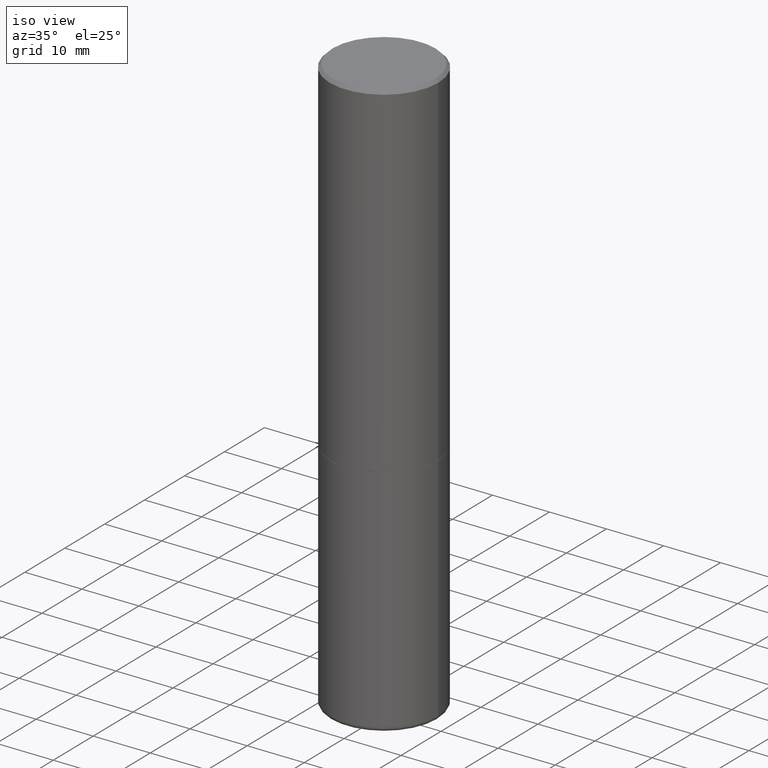
[diagram: clean part render]
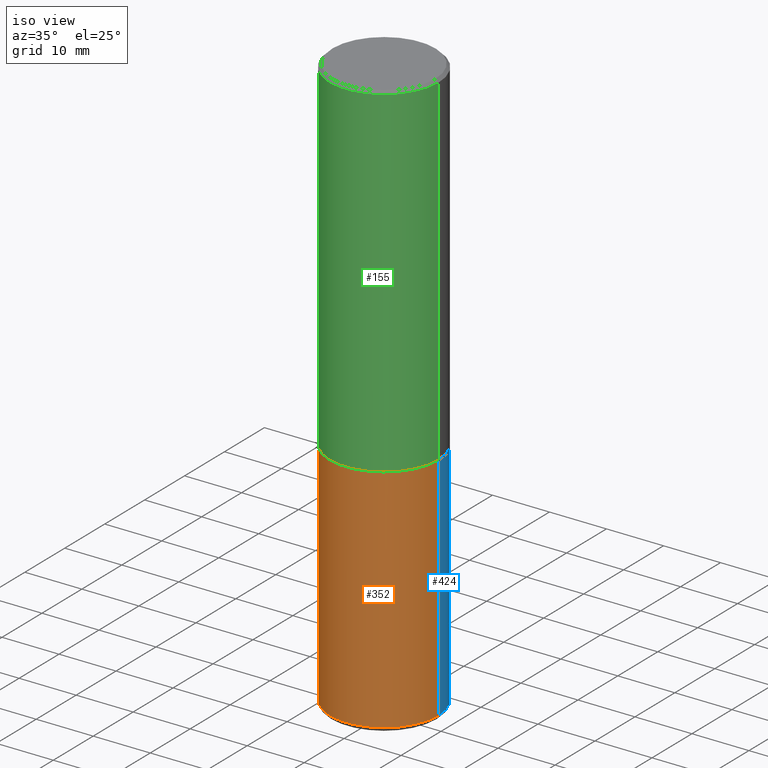
[diagram: same view with three faces highlighted in distinct colors, each labeled with its STEP entity id]
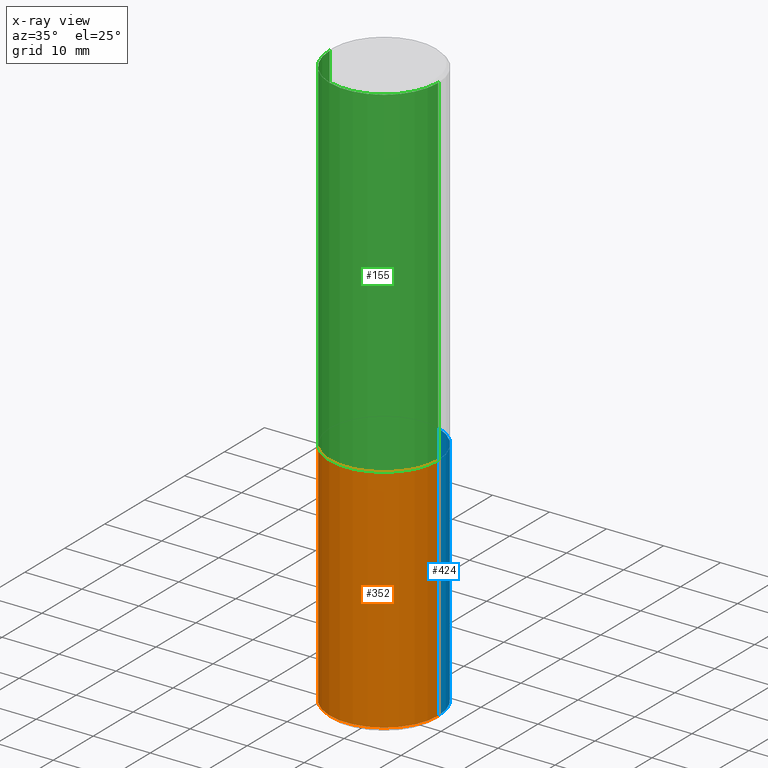
[diagram: x-ray of the same camera — body ghosted, the three highlighted faces saturated]
A machine part, iso view with three faces highlighted in distinct colors.
The next image is the same camera in x-ray (body ghosted, the three faces saturated) — at least one of them is partly hidden behind the body in this view.
Their STEP definitions:

[orange] entity #352 — the highlighted cylindrical surface (partial cylindrical patch) has radius 9.525 mm, axis along (-0, 0, 1).
#10 = DIRECTION ( 'NONE',  ( -2.445468806185136597E-29, 3.491481338843145583E-15, 1.000000000000000000 ) ) ;
#21 = EDGE_CURVE ( 'NONE', #475, #142, #248, .T. ) ;
#48 = EDGE_CURVE ( 'NONE', #256, #142, #184, .T. ) ;
#68 = DIRECTION ( 'NONE',  ( -2.445468806185136877E-29, 3.491481338843145188E-15, 1.000000000000000000 ) ) ;
#91 = CARTESIAN_POINT ( 'NONE',  ( 9.708513954033757613E-29, -1.386118490355461518E-14, -3.970001142308074993 ) ) ;
#122 = VERTEX_POINT ( 'NONE', #171 ) ;
#131 = CYLINDRICAL_SURFACE ( 'NONE', #177, 0.3749999999999995004 ) ;
#140 = DIRECTION ( 'NONE',  ( -2.445468806185136877E-29, 3.491481338843145188E-15, 1.000000000000000000 ) ) ;
#142 = VERTEX_POINT ( 'NONE', #322 ) ;
#156 = EDGE_LOOP ( 'NONE', ( #197, #285, #431, #291 ) ) ;
#159 = DIRECTION ( 'NONE',  ( 1.000000000000000000, -6.982962677686265133E-15, 0.000000000000000000 ) ) ;
#170 = FACE_OUTER_BOUND ( 'NONE', #156, .T. ) ;
#171 = CARTESIAN_POINT ( 'NONE',  ( -0.3749999999999993894, -8.412191282553170896E-15, -3.970001142308074993 ) ) ;
#176 = EDGE_CURVE ( 'NONE', #122, #256, #487, .T. ) ;
#177 = AXIS2_PLACEMENT_3D ( 'NONE', #344, #426, #233 ) ;
#184 = CIRCLE ( 'NONE', #190, 0.3749999999999995559 ) ;
#190 = AXIS2_PLACEMENT_3D ( 'NONE', #393, #10, #159 ) ;
#197 = ORIENTED_EDGE ( 'NONE', *, *, #176, .F. ) ;
#226 = CARTESIAN_POINT ( 'NONE',  ( -0.3749999999999995004, 2.664535259100372147E-15, -1.844600658845587076E-29 ) ) ;
#233 = DIRECTION ( 'NONE',  ( 1.000000000000000000, -6.982962677686265133E-15, 4.876176775795935793E-29 ) ) ;
#248 = LINE ( 'NONE', #476, #489 ) ;
#256 = VERTEX_POINT ( 'NONE', #292 ) ;
#285 = ORIENTED_EDGE ( 'NONE', *, *, #294, .T. ) ;
#291 = ORIENTED_EDGE ( 'NONE', *, *, #48, .F. ) ;
#292 = CARTESIAN_POINT ( 'NONE',  ( -0.3749999999999995559, -8.412191282553170896E-15, -2.375000000000000000 ) ) ;
#294 = EDGE_CURVE ( 'NONE', #122, #475, #348, .T. ) ;
#322 = CARTESIAN_POINT ( 'NONE',  ( 0.3749999999999995559, -1.091087918388481698E-14, -2.375000000000000000 ) ) ;
#324 = AXIS2_PLACEMENT_3D ( 'NONE', #91, #368, #440 ) ;
#344 = CARTESIAN_POINT ( 'NONE',  ( 0.000000000000000000, 0.000000000000000000, 0.000000000000000000 ) ) ;
#348 = CIRCLE ( 'NONE', #324, 0.3749999999999993894 ) ;
#352 = ADVANCED_FACE ( 'NONE', ( #170 ), #131, .T. ) ;
#359 = CARTESIAN_POINT ( 'NONE',  ( 0.3749999999999993894, -1.647979590768696204E-14, -3.970001142308074993 ) ) ;
#368 = DIRECTION ( 'NONE',  ( -2.445468806185136597E-29, 3.491481338843145583E-15, 1.000000000000000000 ) ) ;
#393 = CARTESIAN_POINT ( 'NONE',  ( 5.807988414689699417E-29, -8.292268179752470118E-15, -2.375000000000000000 ) ) ;
#426 = DIRECTION ( 'NONE',  ( -2.445468806185136597E-29, 3.491481338843145583E-15, 1.000000000000000000 ) ) ;
#431 = ORIENTED_EDGE ( 'NONE', *, *, #21, .T. ) ;
#440 = DIRECTION ( 'NONE',  ( 1.000000000000000000, -6.982962677686268288E-15, 0.000000000000000000 ) ) ;
#475 = VERTEX_POINT ( 'NONE', #359 ) ;
#476 = CARTESIAN_POINT ( 'NONE',  ( 0.3749999999999995004, -2.618611004132346072E-15, 1.828566290923473400E-29 ) ) ;
#479 = VECTOR ( 'NONE', #68, 39.37007874015748143 ) ;
#487 = LINE ( 'NONE', #226, #479 ) ;
#489 = VECTOR ( 'NONE', #140, 39.37007874015748143 ) ;

[blue] entity #424 — the highlighted cylindrical surface (partial cylindrical patch) has radius 9.525 mm, axis along (-0, 0, 1).
#21 = EDGE_CURVE ( 'NONE', #475, #142, #248, .T. ) ;
#51 = CIRCLE ( 'NONE', #281, 0.3749999999999995559 ) ;
#68 = DIRECTION ( 'NONE',  ( -2.445468806185136877E-29, 3.491481338843145188E-15, 1.000000000000000000 ) ) ;
#73 = DIRECTION ( 'NONE',  ( -2.445468806185136597E-29, 3.491481338843145583E-15, 1.000000000000000000 ) ) ;
#85 = CARTESIAN_POINT ( 'NONE',  ( 0.000000000000000000, 0.000000000000000000, 0.000000000000000000 ) ) ;
#98 = ORIENTED_EDGE ( 'NONE', *, *, #21, .F. ) ;
#122 = VERTEX_POINT ( 'NONE', #171 ) ;
#126 = DIRECTION ( 'NONE',  ( 1.000000000000000000, -6.982962677686268288E-15, 0.000000000000000000 ) ) ;
#140 = DIRECTION ( 'NONE',  ( -2.445468806185136877E-29, 3.491481338843145188E-15, 1.000000000000000000 ) ) ;
#142 = VERTEX_POINT ( 'NONE', #322 ) ;
#149 = DIRECTION ( 'NONE',  ( 1.000000000000000000, -6.982962677686265133E-15, 4.876176775795935793E-29 ) ) ;
#152 = CIRCLE ( 'NONE', #185, 0.3749999999999993894 ) ;
#171 = CARTESIAN_POINT ( 'NONE',  ( -0.3749999999999993894, -8.412191282553170896E-15, -3.970001142308074993 ) ) ;
#176 = EDGE_CURVE ( 'NONE', #122, #256, #487, .T. ) ;
#178 = AXIS2_PLACEMENT_3D ( 'NONE', #85, #73, #149 ) ;
#185 = AXIS2_PLACEMENT_3D ( 'NONE', #329, #406, #126 ) ;
#226 = CARTESIAN_POINT ( 'NONE',  ( -0.3749999999999995004, 2.664535259100372147E-15, -1.844600658845587076E-29 ) ) ;
#231 = EDGE_CURVE ( 'NONE', #142, #256, #51, .T. ) ;
#232 = ORIENTED_EDGE ( 'NONE', *, *, #315, .T. ) ;
#248 = LINE ( 'NONE', #476, #489 ) ;
#253 = EDGE_LOOP ( 'NONE', ( #232, #333, #486, #98 ) ) ;
#256 = VERTEX_POINT ( 'NONE', #292 ) ;
#275 = CYLINDRICAL_SURFACE ( 'NONE', #178, 0.3749999999999995004 ) ;
#281 = AXIS2_PLACEMENT_3D ( 'NONE', #423, #483, #297 ) ;
#292 = CARTESIAN_POINT ( 'NONE',  ( -0.3749999999999995559, -8.412191282553170896E-15, -2.375000000000000000 ) ) ;
#297 = DIRECTION ( 'NONE',  ( 1.000000000000000000, -6.982962677686265133E-15, 0.000000000000000000 ) ) ;
#314 = FACE_OUTER_BOUND ( 'NONE', #253, .T. ) ;
#315 = EDGE_CURVE ( 'NONE', #475, #122, #152, .T. ) ;
#322 = CARTESIAN_POINT ( 'NONE',  ( 0.3749999999999995559, -1.091087918388481698E-14, -2.375000000000000000 ) ) ;
#329 = CARTESIAN_POINT ( 'NONE',  ( 9.708513954033757613E-29, -1.386118490355461518E-14, -3.970001142308074993 ) ) ;
#333 = ORIENTED_EDGE ( 'NONE', *, *, #176, .T. ) ;
#359 = CARTESIAN_POINT ( 'NONE',  ( 0.3749999999999993894, -1.647979590768696204E-14, -3.970001142308074993 ) ) ;
#406 = DIRECTION ( 'NONE',  ( -2.445468806185136597E-29, 3.491481338843145583E-15, 1.000000000000000000 ) ) ;
#423 = CARTESIAN_POINT ( 'NONE',  ( 5.807988414689699417E-29, -8.292268179752470118E-15, -2.375000000000000000 ) ) ;
#424 = ADVANCED_FACE ( 'NONE', ( #314 ), #275, .T. ) ;
#475 = VERTEX_POINT ( 'NONE', #359 ) ;
#476 = CARTESIAN_POINT ( 'NONE',  ( 0.3749999999999995004, -2.618611004132346072E-15, 1.828566290923473400E-29 ) ) ;
#479 = VECTOR ( 'NONE', #68, 39.37007874015748143 ) ;
#483 = DIRECTION ( 'NONE',  ( -2.445468806185136597E-29, 3.491481338843145583E-15, 1.000000000000000000 ) ) ;
#486 = ORIENTED_EDGE ( 'NONE', *, *, #231, .F. ) ;
#487 = LINE ( 'NONE', #226, #479 ) ;
#489 = VECTOR ( 'NONE', #140, 39.37007874015748143 ) ;

[green] entity #155 — the highlighted cylindrical surface (partial cylindrical patch) has radius 9.525 mm, axis along (-0, 0, 1).
#1 = LINE ( 'NONE', #32, #402 ) ;
#8 = CARTESIAN_POINT ( 'NONE',  ( -0.3749999999999993339, 2.548781377355482380E-15, -0.02000000000000018777 ) ) ;
#25 = CARTESIAN_POINT ( 'NONE',  ( 0.3749999999999995559, -1.090738770254597397E-14, -2.373999999999999666 ) ) ;
#31 = LINE ( 'NONE', #121, #464 ) ;
#32 = CARTESIAN_POINT ( 'NONE',  ( -0.3749999999999993894, 2.664535259100371358E-15, -1.844600658845586515E-29 ) ) ;
#37 = CYLINDRICAL_SURFACE ( 'NONE', #202, 0.3749999999999993894 ) ;
#44 = CIRCLE ( 'NONE', #364, 0.3749999999999993339 ) ;
#60 = EDGE_LOOP ( 'NONE', ( #411, #284, #179, #99 ) ) ;
#61 = CARTESIAN_POINT ( 'NONE',  ( 5.805542945883513814E-29, -8.288776698413627111E-15, -2.373999999999999666 ) ) ;
#74 = DIRECTION ( 'NONE',  ( -2.445468806185136597E-29, 3.491481338843145583E-15, 1.000000000000000000 ) ) ;
#89 = EDGE_CURVE ( 'NONE', #298, #211, #31, .T. ) ;
#99 = ORIENTED_EDGE ( 'NONE', *, *, #225, .F. ) ;
#112 = DIRECTION ( 'NONE',  ( 1.000000000000000000, -6.982962677686267499E-15, 0.000000000000000000 ) ) ;
#121 = CARTESIAN_POINT ( 'NONE',  ( 0.3749999999999993894, -2.618611004132345678E-15, 1.828566290923473120E-29 ) ) ;
#135 = DIRECTION ( 'NONE',  ( -2.445468806185136597E-29, 3.491481338843145583E-15, 1.000000000000000000 ) ) ;
#143 = DIRECTION ( 'NONE',  ( 1.000000000000000000, -6.982962677686266711E-15, 4.876176775795936353E-29 ) ) ;
#155 = ADVANCED_FACE ( 'NONE', ( #224 ), #37, .T. ) ;
#174 = VERTEX_POINT ( 'NONE', #342 ) ;
#179 = ORIENTED_EDGE ( 'NONE', *, *, #89, .T. ) ;
#182 = DIRECTION ( 'NONE',  ( -2.445468806185136877E-29, 3.491481338843145188E-15, 1.000000000000000000 ) ) ;
#186 = EDGE_CURVE ( 'NONE', #174, #398, #1, .T. ) ;
#202 = AXIS2_PLACEMENT_3D ( 'NONE', #339, #380, #143 ) ;
#211 = VERTEX_POINT ( 'NONE', #229 ) ;
#212 = DIRECTION ( 'NONE',  ( 1.000000000000000000, -6.982962677686265133E-15, 0.000000000000000000 ) ) ;
#224 = FACE_OUTER_BOUND ( 'NONE', #60, .T. ) ;
#225 = EDGE_CURVE ( 'NONE', #398, #211, #44, .T. ) ;
#229 = CARTESIAN_POINT ( 'NONE',  ( 0.3749999999999993339, -2.642516375941183295E-15, -0.02000000000000018777 ) ) ;
#274 = DIRECTION ( 'NONE',  ( -2.445468806185136877E-29, 3.491481338843145188E-15, 1.000000000000000000 ) ) ;
#284 = ORIENTED_EDGE ( 'NONE', *, *, #287, .T. ) ;
#287 = EDGE_CURVE ( 'NONE', #174, #298, #408, .T. ) ;
#298 = VERTEX_POINT ( 'NONE', #25 ) ;
#339 = CARTESIAN_POINT ( 'NONE',  ( 0.000000000000000000, 0.000000000000000000, 0.000000000000000000 ) ) ;
#342 = CARTESIAN_POINT ( 'NONE',  ( -0.3749999999999995559, -1.514767903494871085E-15, -2.373999999999999666 ) ) ;
#364 = AXIS2_PLACEMENT_3D ( 'NONE', #388, #74, #112 ) ;
#380 = DIRECTION ( 'NONE',  ( -2.445468806185136597E-29, 3.491481338843145583E-15, 1.000000000000000000 ) ) ;
#388 = CARTESIAN_POINT ( 'NONE',  ( 4.890937612370318701E-31, -6.982962677686356937E-17, -0.02000000000000018777 ) ) ;
#398 = VERTEX_POINT ( 'NONE', #8 ) ;
#402 = VECTOR ( 'NONE', #182, 39.37007874015748143 ) ;
#408 = CIRCLE ( 'NONE', #466, 0.3749999999999995559 ) ;
#411 = ORIENTED_EDGE ( 'NONE', *, *, #186, .F. ) ;
#464 = VECTOR ( 'NONE', #274, 39.37007874015748143 ) ;
#466 = AXIS2_PLACEMENT_3D ( 'NONE', #61, #135, #212 ) ;